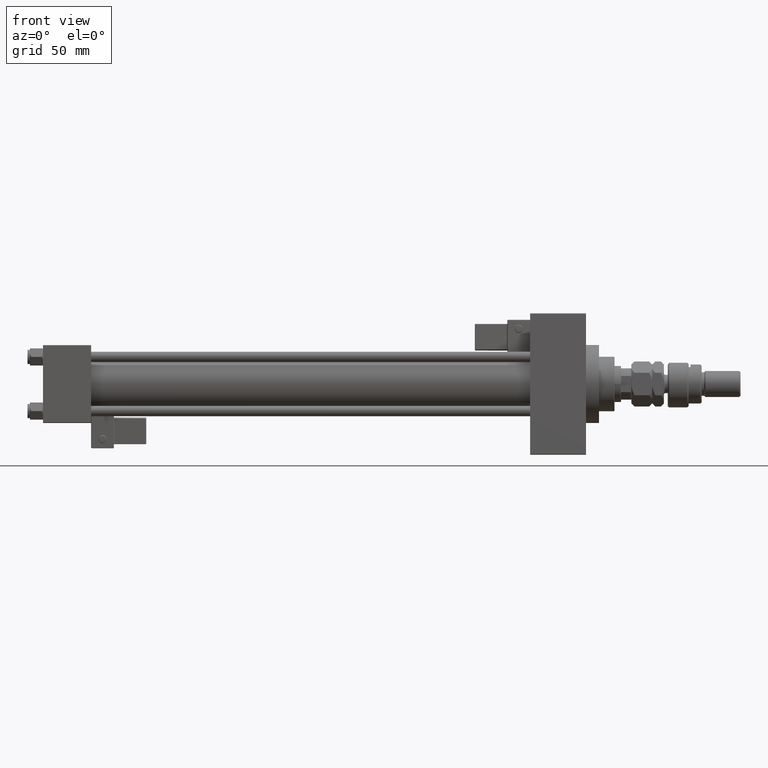
[diagram: clean part render]
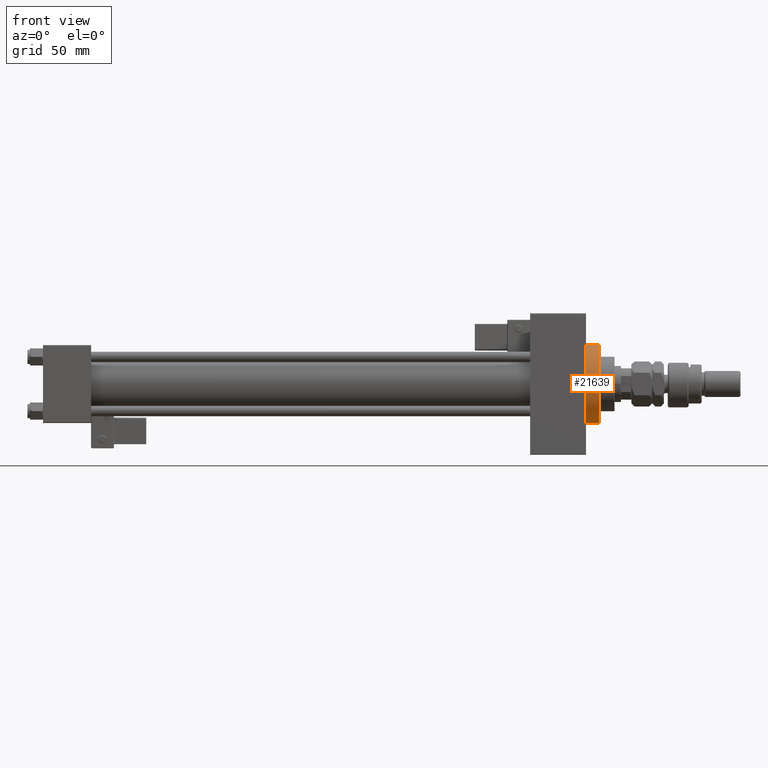
[diagram: same view with one face highlighted and labeled with its STEP entity id]
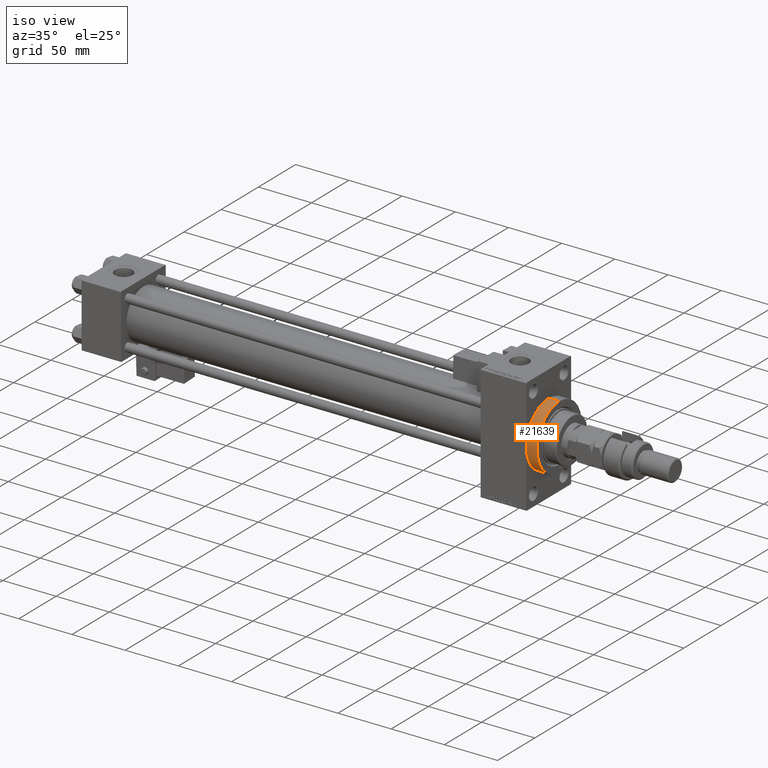
[diagram: same view with one face highlighted and labeled with its STEP entity id]
A machine part, front view. The second image highlights one B-rep face of the part: STEP entity #21639.
A second angle (iso view) of the same face is appended — the face is thin or edge-on in the first view.
In plain terms, the highlighted cylindrical surface (partial cylindrical patch) has radius 30 mm, axis along (-1, -0, -0).
Its self-contained STEP definition (entity closure, byte-faithful):
#96 = CARTESIAN_POINT ( 'NONE',  ( 428.0000000000000000, 0.000000000000000000, 30.00000000000000000 ) ) ;
#871 = CIRCLE ( 'NONE', #8559, 30.00000000000000000 ) ;
#1686 = DIRECTION ( 'NONE',  ( 0.000000000000000000, 0.000000000000000000, -1.000000000000000000 ) ) ;
#2163 = CARTESIAN_POINT ( 'NONE',  ( 428.0000000000000000, 0.000000000000000000, 30.00000000000000000 ) ) ;
#2708 = ORIENTED_EDGE ( 'NONE', *, *, #27368, .T. ) ;
#6201 = DIRECTION ( 'NONE',  ( 1.000000000000000000, 0.000000000000000000, 0.000000000000000000 ) ) ;
#7092 = EDGE_CURVE ( 'NONE', #28944, #12078, #24523, .T. ) ;
#8559 = AXIS2_PLACEMENT_3D ( 'NONE', #18377, #6201, #39121 ) ;
#8771 = EDGE_LOOP ( 'NONE', ( #51596, #9372, #46751, #2708, #12411 ) ) ;
#9327 = CARTESIAN_POINT ( 'NONE',  ( 428.0000000000000000, 3.673940397442059178E-15, -30.00000000000000000 ) ) ;
#9372 = ORIENTED_EDGE ( 'NONE', *, *, #47159, .F. ) ;
#9609 = CARTESIAN_POINT ( 'NONE',  ( 418.0000000000000000, 0.000000000000000000, 30.00000000000000000 ) ) ;
#9677 = CARTESIAN_POINT ( 'NONE',  ( 418.0000000000000000, 0.000000000000000000, 0.000000000000000000 ) ) ;
#9960 = CARTESIAN_POINT ( 'NONE',  ( 428.0000000000000000, 3.673940397442059178E-15, -30.00000000000000000 ) ) ;
#10925 = LINE ( 'NONE', #2163, #39595 ) ;
#12078 = VERTEX_POINT ( 'NONE', #39549 ) ;
#12359 = VERTEX_POINT ( 'NONE', #96 ) ;
#12411 = ORIENTED_EDGE ( 'NONE', *, *, #7092, .T. ) ;
#13197 = AXIS2_PLACEMENT_3D ( 'NONE', #20004, #48209, #36238 ) ;
#16031 = AXIS2_PLACEMENT_3D ( 'NONE', #9677, #50564, #1686 ) ;
#18377 = CARTESIAN_POINT ( 'NONE',  ( 428.0000000000000000, 0.000000000000000000, 0.000000000000000000 ) ) ;
#20004 = CARTESIAN_POINT ( 'NONE',  ( 428.0000000000000000, 0.000000000000000000, 0.000000000000000000 ) ) ;
#21639 = ADVANCED_FACE ( 'NONE', ( #47690 ), #51395, .T. ) ;
#21698 = CARTESIAN_POINT ( 'NONE',  ( 418.0000000000000000, 0.000000000000000000, 0.000000000000000000 ) ) ;
#23132 = DIRECTION ( 'NONE',  ( -1.000000000000000000, -0.000000000000000000, -0.000000000000000000 ) ) ;
#24523 = CIRCLE ( 'NONE', #16031, 30.00000000000000000 ) ;
#27368 = EDGE_CURVE ( 'NONE', #33254, #28944, #28584, .T. ) ;
#28584 = CIRCLE ( 'NONE', #44711, 30.00000000000000000 ) ;
#28944 = VERTEX_POINT ( 'NONE', #51273 ) ;
#30196 = DIRECTION ( 'NONE',  ( 1.000000000000000000, 0.000000000000000000, 0.000000000000000000 ) ) ;
#30903 = LINE ( 'NONE', #9960, #48190 ) ;
#33254 = VERTEX_POINT ( 'NONE', #9609 ) ;
#33938 = DIRECTION ( 'NONE',  ( 0.000000000000000000, 0.000000000000000000, -1.000000000000000000 ) ) ;
#36238 = DIRECTION ( 'NONE',  ( 0.000000000000000000, 0.000000000000000000, 1.000000000000000000 ) ) ;
#39121 = DIRECTION ( 'NONE',  ( 0.000000000000000000, 0.000000000000000000, -1.000000000000000000 ) ) ;
#39224 = EDGE_CURVE ( 'NONE', #12359, #33254, #10925, .T. ) ;
#39549 = CARTESIAN_POINT ( 'NONE',  ( 418.0000000000000000, 3.673940397442059178E-15, -30.00000000000000000 ) ) ;
#39595 = VECTOR ( 'NONE', #23132, 1000.000000000000000 ) ;
#41628 = EDGE_CURVE ( 'NONE', #49670, #12078, #30903, .T. ) ;
#43132 = DIRECTION ( 'NONE',  ( -1.000000000000000000, -0.000000000000000000, -0.000000000000000000 ) ) ;
#44711 = AXIS2_PLACEMENT_3D ( 'NONE', #21698, #30196, #33938 ) ;
#46751 = ORIENTED_EDGE ( 'NONE', *, *, #39224, .T. ) ;
#47159 = EDGE_CURVE ( 'NONE', #12359, #49670, #871, .T. ) ;
#47690 = FACE_OUTER_BOUND ( 'NONE', #8771, .T. ) ;
#48190 = VECTOR ( 'NONE', #43132, 1000.000000000000000 ) ;
#48209 = DIRECTION ( 'NONE',  ( -1.000000000000000000, -0.000000000000000000, -0.000000000000000000 ) ) ;
#49670 = VERTEX_POINT ( 'NONE', #9327 ) ;
#50564 = DIRECTION ( 'NONE',  ( 1.000000000000000000, 0.000000000000000000, 0.000000000000000000 ) ) ;
#51273 = CARTESIAN_POINT ( 'NONE',  ( 418.0000000000000000, -30.00000000000000000, 0.000000000000000000 ) ) ;
#51395 = CYLINDRICAL_SURFACE ( 'NONE', #13197, 30.00000000000000000 ) ;
#51596 = ORIENTED_EDGE ( 'NONE', *, *, #41628, .F. ) ;